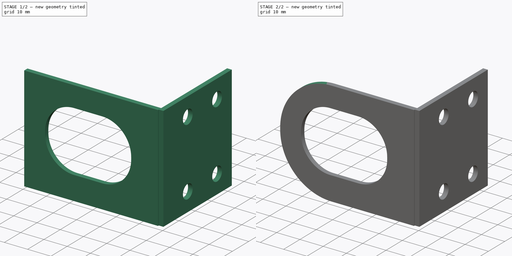
[diagram: build sequence overview — one tinted view per stage of 2, left to right]
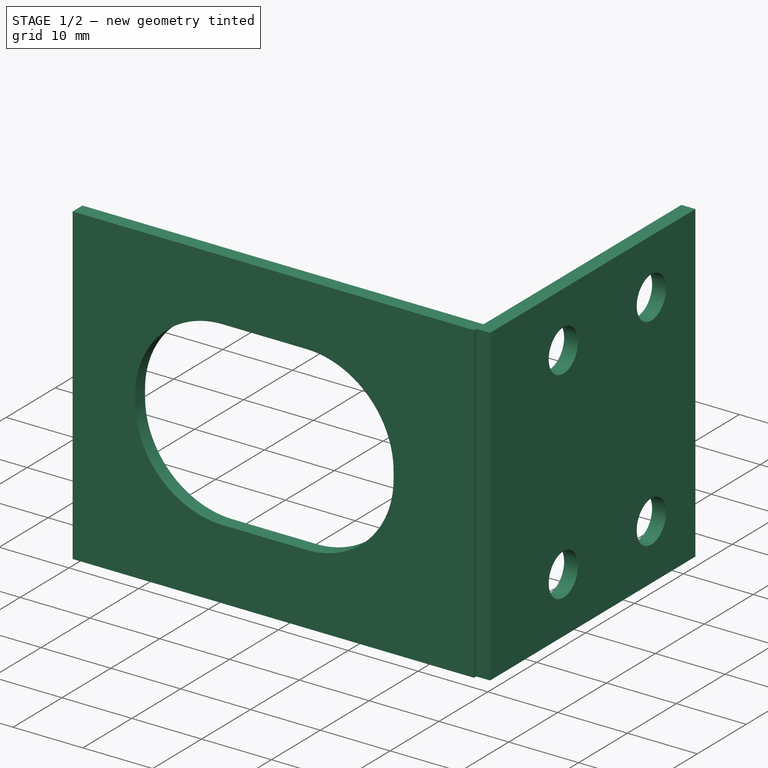
[diagram: stage 1 of 2 — iso view after this stage's code; geometry added in this stage tinted green]
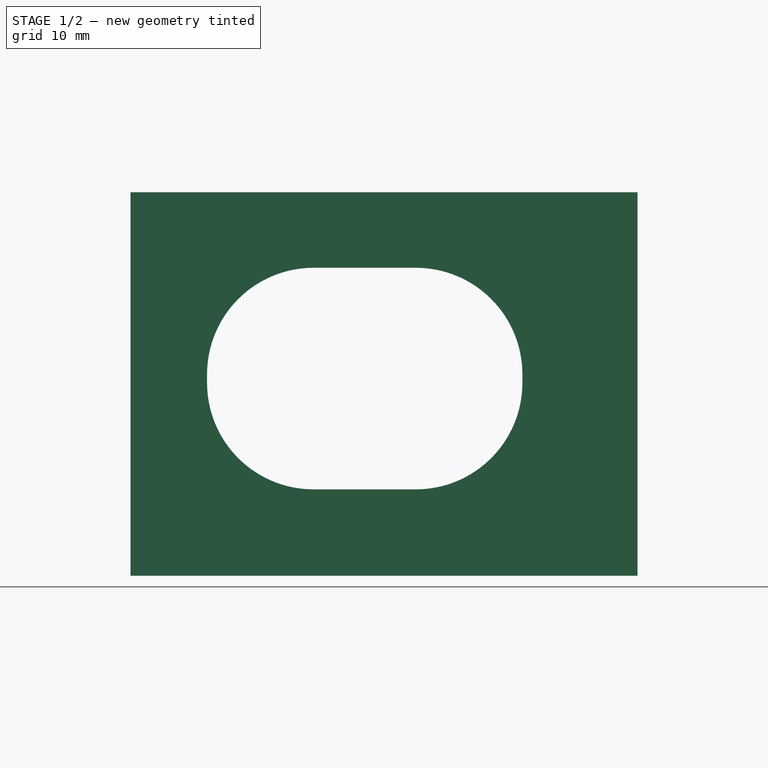
[diagram: stage 1 of 2 — front view after this stage's code; geometry added in this stage tinted green]
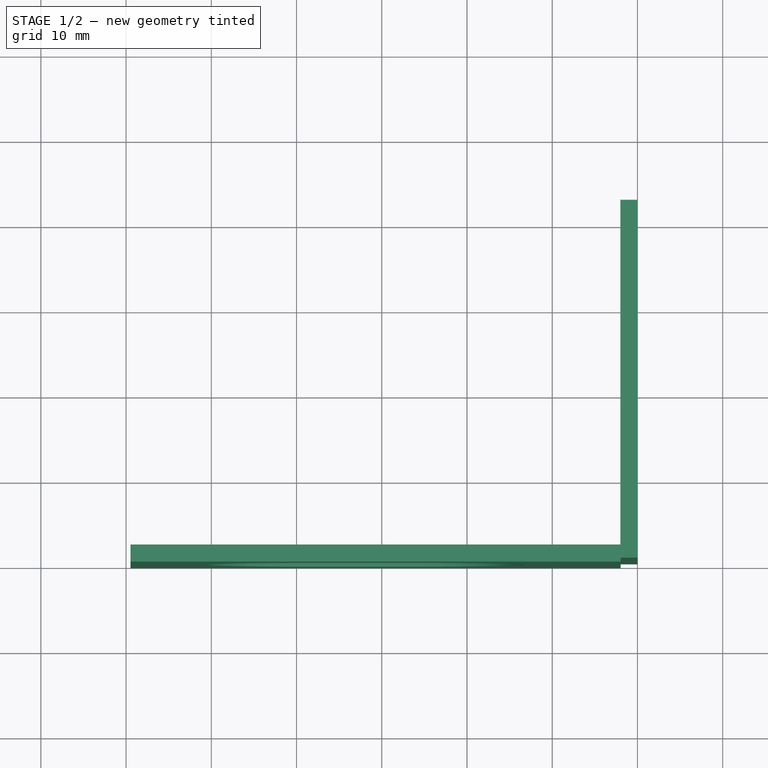
[diagram: stage 1 of 2 — top view after this stage's code; geometry added in this stage tinted green]
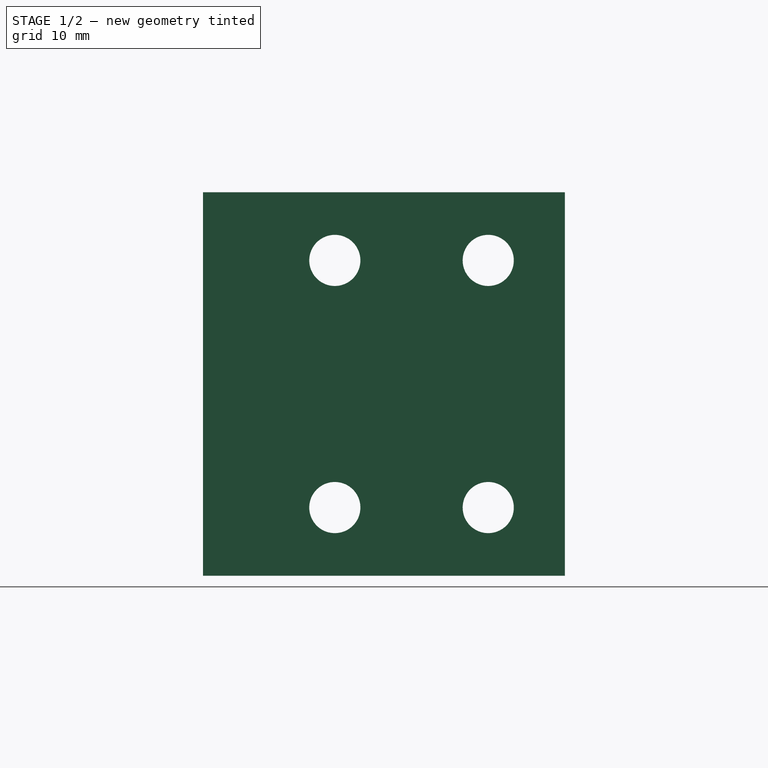
[diagram: stage 1 of 2 — right view after this stage's code; geometry added in this stage tinted green]
FCSTD DOCUMENT  (FreeCAD 0.21R32110 (Git))
Label: Roll_Motor_Mount
License: All rights reserved
LicenseURL: http://en.wikipedia.org/wiki/All_rights_reserved
objects: Sketcher::SketchObject×2, PartDesign::Pad×2, PartDesign::Fillet×1, PartDesign::Body×1
note: 9 computed .brp shape members not serialized (recipe doc carries the construction recipe); baked Part::Feature solids carry a one-line shape summary decoded from their .brp

FEATURE [Sketcher::SketchObject] Sketch017
  AttachmentOffset = pos=(3,-3,-40) rot=(0,0,1;0rad)
  FullyConstrained = false
  MapMode = 5
  Placement = pos=(-40,3,-3) rot=(0.57735,0.57735,0.57735;2.0944rad)
  Support = -> [YZ_Plane009]
  sketch-geometry (8):
    g0: LineSegment StartX=-2.53905 StartY=-25.1351 StartZ=0 EndX=39.4609 EndY=-25.1351 EndZ=0
    g1: LineSegment StartX=39.4609 StartY=-25.1351 StartZ=0 EndX=39.4609 EndY=19.8649 EndZ=0
    g2: LineSegment StartX=39.4609 StartY=19.8649 StartZ=0 EndX=-2.53905 EndY=19.8649 EndZ=0
    g3: LineSegment StartX=-2.53905 StartY=19.8649 StartZ=0 EndX=-2.53905 EndY=-25.1351 EndZ=0
    g4: Circle CenterX=12.4609 CenterY=11.8649 CenterZ=0 NormalX=0 NormalY=0 NormalZ=1 AngleXU=0 Radius=3
    g5: Circle CenterX=30.4609 CenterY=11.8649 CenterZ=0 NormalX=0 NormalY=0 NormalZ=1 AngleXU=0 Radius=3
    g6: Circle CenterX=30.4609 CenterY=-17.1351 CenterZ=0 NormalX=0 NormalY=0 NormalZ=1 AngleXU=0 Radius=3
    g7: Circle CenterX=12.4609 CenterY=-17.1351 CenterZ=0 NormalX=0 NormalY=0 NormalZ=1 AngleXU=0 Radius=3
  constraints (22):
    c: Coincident(g0,g1)
    c: Coincident(g1,g2)
    c: Coincident(g2,g3)
    c: Coincident(g3,g0)
    c: Horizontal(g0)
    c: Horizontal(g2)
    c: Vertical(g1)
    c: Vertical(g3)
    c: DistanceX(g2,g2) = 42
    c: DistanceY(g1,g1) = 45
    c: Horizontal(g4,g5)
    c: Horizontal(g7,g6)
    c: Vertical(g6,g5)
    c: Vertical(g4,g7)
    c: DistanceY(g6,g5) = 29
    c: DistanceY(g0,g6) = 8
    c: Equal(g4,g5)
    c: Equal(g4,g7)
    c: Equal(g4,g6)
    c: Diameter(g4) = 6
    c: DistanceX(g4,g5) = 18
    c: DistanceX(g2,g4) = 15
FEATURE [PartDesign::Pad] Pad012
  Direction = (1,-2e-16,3e-16)
  Length = 2
  Length2 = 10
  Placement = pos=(0,0,0) rot=(0.57735,0.57735,0.57735;2.0944rad)
  Profile = -> Sketch017
  ReferenceAxis = -> Sketch017 [N_Axis]
  Reversed = true
  Type = 0
FEATURE [Sketcher::SketchObject] Sketch018
  AttachmentOffset = pos=(-21,-3,0) rot=(0,0,1;0rad)
  FullyConstrained = false
  MapMode = 5
  Placement = pos=(-21,7e-16,-3) rot=(1,0,0;1.5708rad)
  Support = -> [XZ_Plane009]
  sketch-geometry (12):
    g0: LineSegment StartX=-20.9755 StartY=19.8621 StartZ=0 EndX=-78.4755 EndY=19.8621 EndZ=0
    g1: LineSegment StartX=-78.4755 StartY=19.8621 StartZ=0 EndX=-78.4755 EndY=-25.1379 EndZ=0
    g2: LineSegment StartX=-78.4755 StartY=-25.1379 StartZ=0 EndX=-20.9755 EndY=-25.1379 EndZ=0
    g3: LineSegment StartX=-20.9755 StartY=-25.1379 StartZ=0 EndX=-20.9755 EndY=19.8621 EndZ=0
    g4: LineSegment StartX=-57 StartY=-15 StartZ=0 EndX=-45 EndY=-15 EndZ=0
    g5: LineSegment StartX=-32.5 StartY=-2.5 StartZ=0 EndX=-32.5 EndY=-1.5 EndZ=0
    g6: LineSegment StartX=-45 StartY=11 StartZ=0 EndX=-57 EndY=11 EndZ=0
    g7: LineSegment StartX=-69.5 StartY=-1.5 StartZ=0 EndX=-69.5 EndY=-2.5 EndZ=0
    g8: ArcOfCircle CenterX=-57 CenterY=-2.5 CenterZ=0 NormalX=0 NormalY=0 NormalZ=1 AngleXU=0 Radius=12.5 StartAngle=3.14159 EndAngle=4.71239
    g9: ArcOfCircle CenterX=-57 CenterY=-1.5 CenterZ=0 NormalX=0 NormalY=0 NormalZ=1 AngleXU=0 Radius=12.5 StartAngle=1.5708 EndAngle=3.14159
    g10: ArcOfCircle CenterX=-45 CenterY=-1.5 CenterZ=0 NormalX=0 NormalY=0 NormalZ=1 AngleXU=0 Radius=12.5 StartAngle=0 EndAngle=1.5708
    g11: ArcOfCircle CenterX=-45 CenterY=-2.5 CenterZ=0 NormalX=0 NormalY=0 NormalZ=1 AngleXU=0 Radius=12.5 StartAngle=4.71239 EndAngle=6.28319
  constraints (30):
    c: Coincident(g0,g1)
    c: Coincident(g1,g2)
    c: Coincident(g2,g3)
    c: Coincident(g3,g0)
    c: Horizontal(g0)
    c: Horizontal(g2)
    c: Vertical(g1)
    c: Vertical(g3)
    c: DistanceY(g3,g3) = 45
    c: DistanceX(g0,g0) = 57.5
    c: Horizontal(g4)
    c: Horizontal(g6)
    c: Vertical(g5)
    c: Vertical(g7)
    c: Tangent(g7,g8) = -1.5708
    c: Tangent(g4,g8) = -1.5708
    c: Tangent(g7,g9) = -1.5708
    c: Tangent(g6,g9) = -1.5708
    c: Tangent(g6,g10) = -1.5708
    c: Tangent(g5,g10) = -1.5708
    c: Tangent(g4,g11) = -1.5708
    c: Tangent(g5,g11) = -1.5708
    c: Equal(g9,g10)
    c: Equal(g9,g11)
    c: Equal(g9,g8)
    c: Diameter(g9) = 25
    c: DistanceY(g4,g6) = 26
    c: DistanceX(g6,g6) = 12
    c: DistanceY(g4) = -15
    c: DistanceX(g4) = -45
FEATURE [PartDesign::Pad] Pad013
  BaseFeature = -> Pad012
  Direction = (0,-1,-2e-16)
  Length = 2
  Length2 = 10
  Placement = pos=(0,0,0) rot=(0.57735,0.57735,0.57735;2.0944rad)
  Profile = -> Sketch018
  ReferenceAxis = -> Sketch018 [N_Axis]
  Reversed = true
  Type = 0
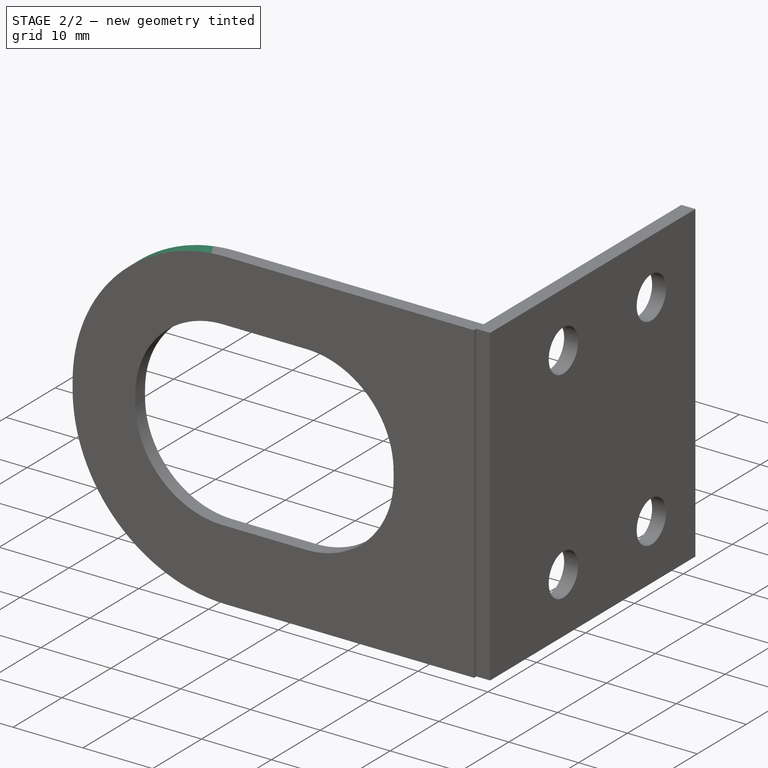
[diagram: stage 2 of 2 — iso view after this stage's code; geometry added in this stage tinted green]
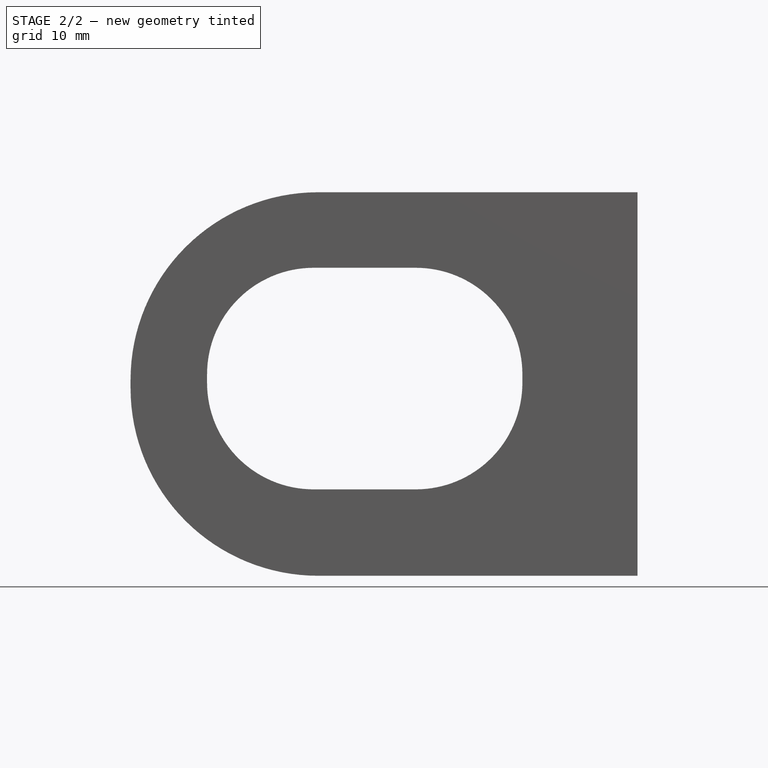
[diagram: stage 2 of 2 — front view after this stage's code; geometry added in this stage tinted green]
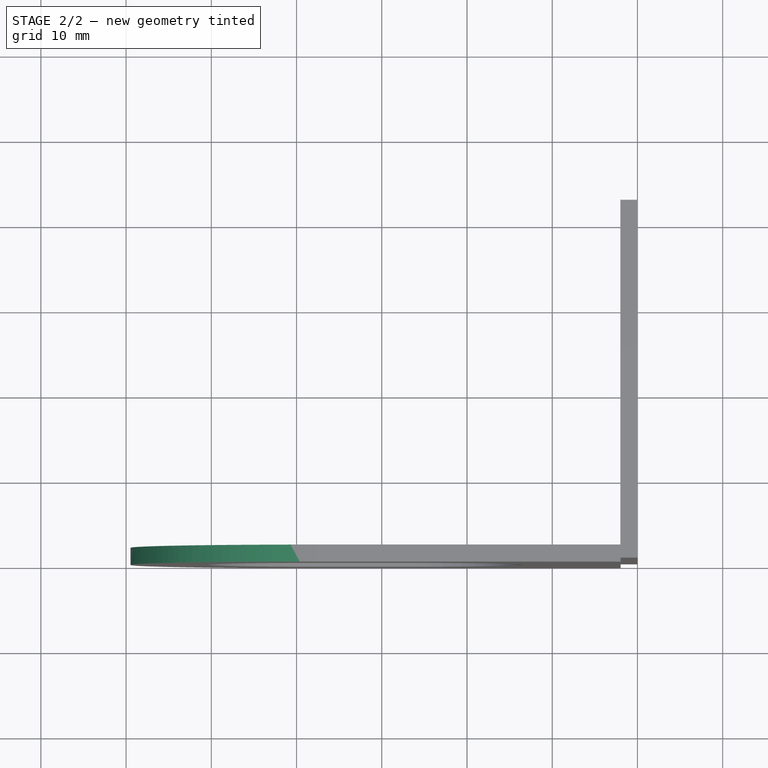
[diagram: stage 2 of 2 — top view after this stage's code; geometry added in this stage tinted green]
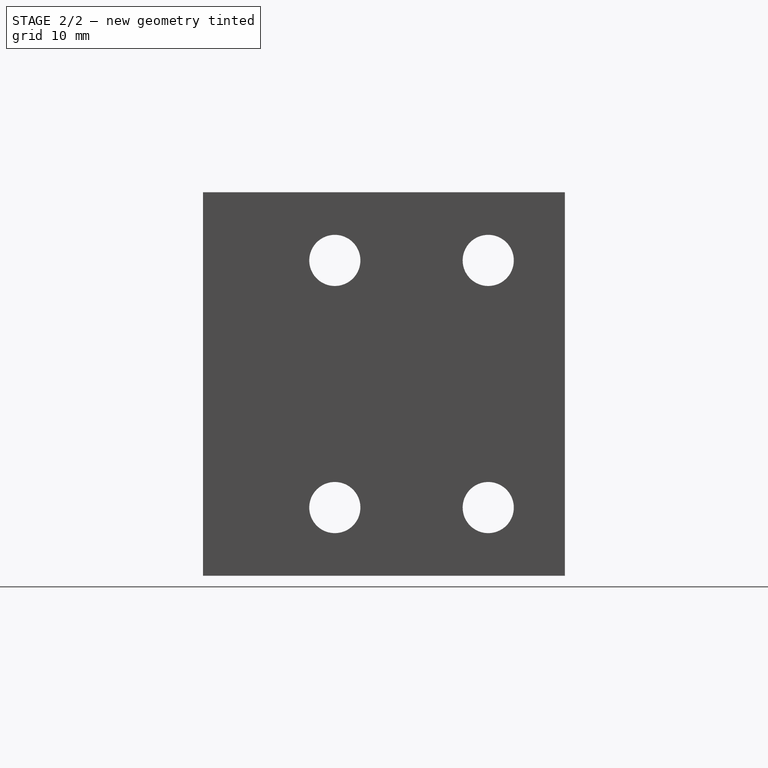
[diagram: stage 2 of 2 — right view after this stage's code; geometry added in this stage tinted green]
FEATURE [PartDesign::Fillet] Fillet
  Base = -> Pad013 [Edge48,Edge47]
  BaseFeature = -> Pad013
  Placement = pos=(0,0,0) rot=(0.57735,0.57735,0.57735;2.0944rad)
  Radius = 22
  SupportTransform = false
  UseAllEdges = false
FEATURE [PartDesign::Body] Body005  label="Roll Motor Mount"
  Group = -> [Sketch017,Pad012,Sketch018,Pad013,Fillet]
  Origin = -> Origin009
  Tip = -> Fillet
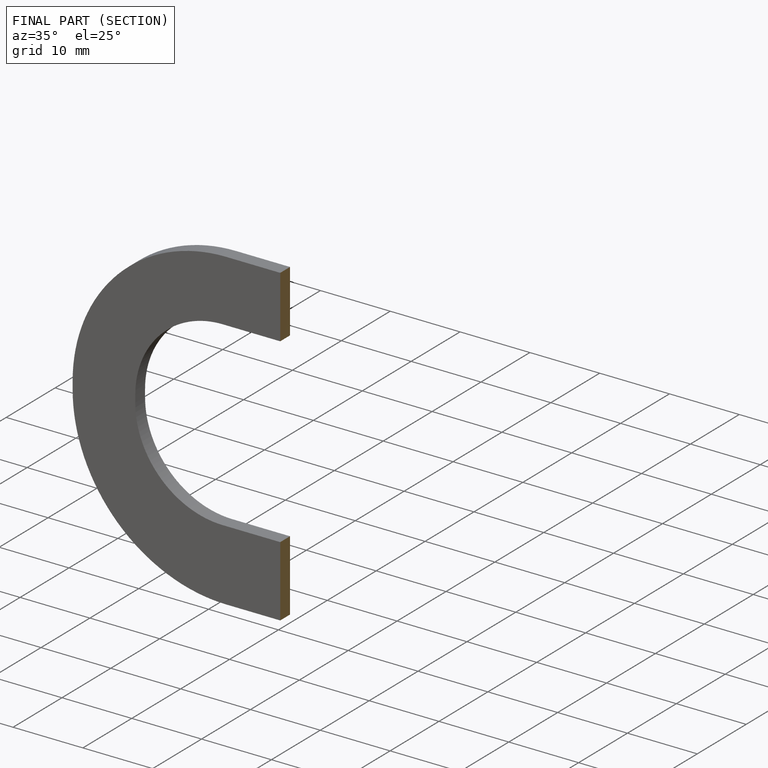
[diagram: finished part — half-section view (interior)]
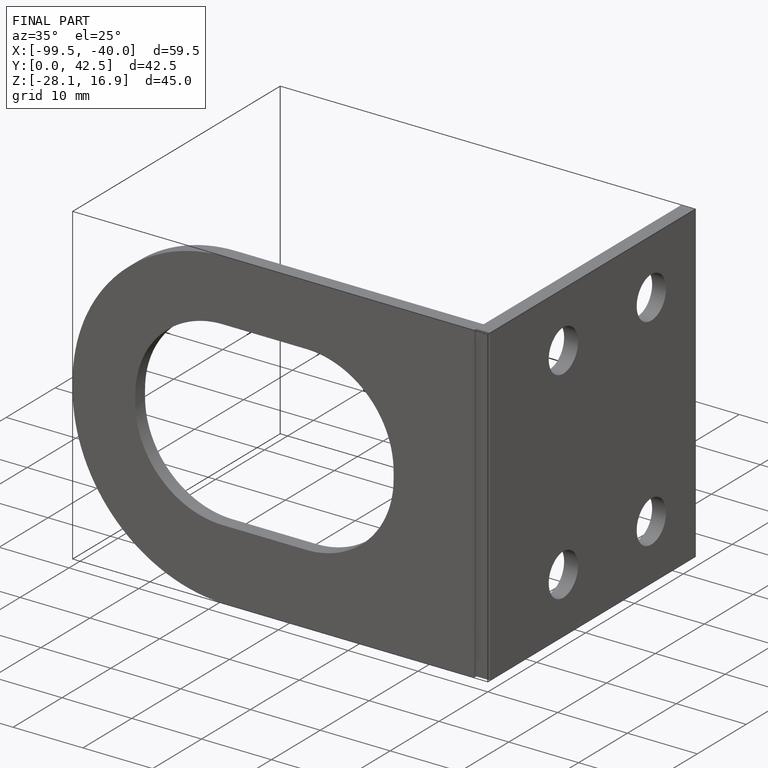
[diagram: finished part — iso view with bounding-box wireframe]
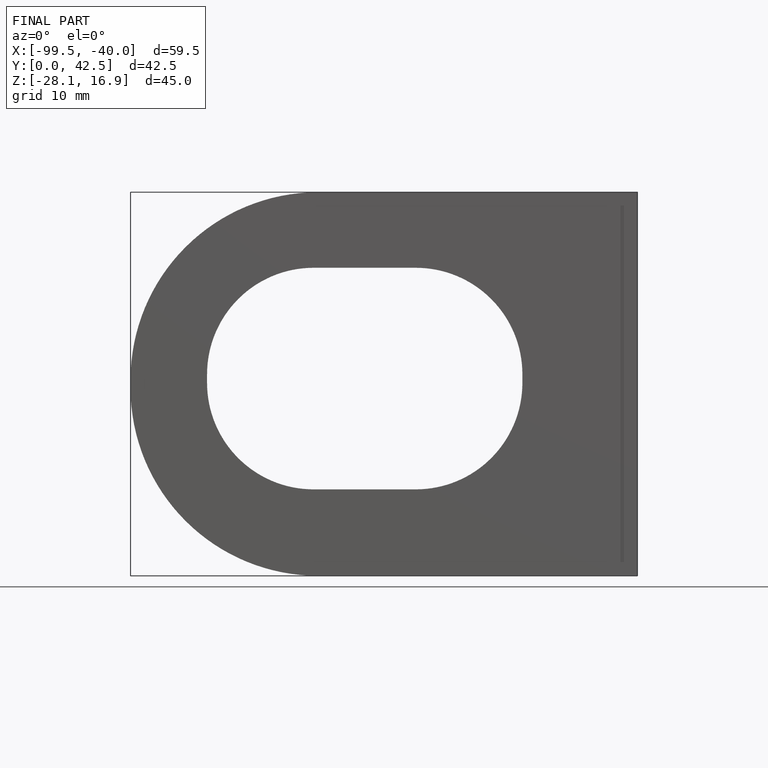
[diagram: finished part — front view with bounding-box wireframe]
